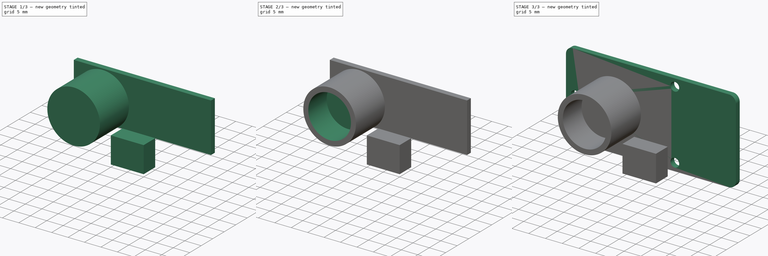
[diagram: build sequence overview — one tinted view per stage of 3, left to right]
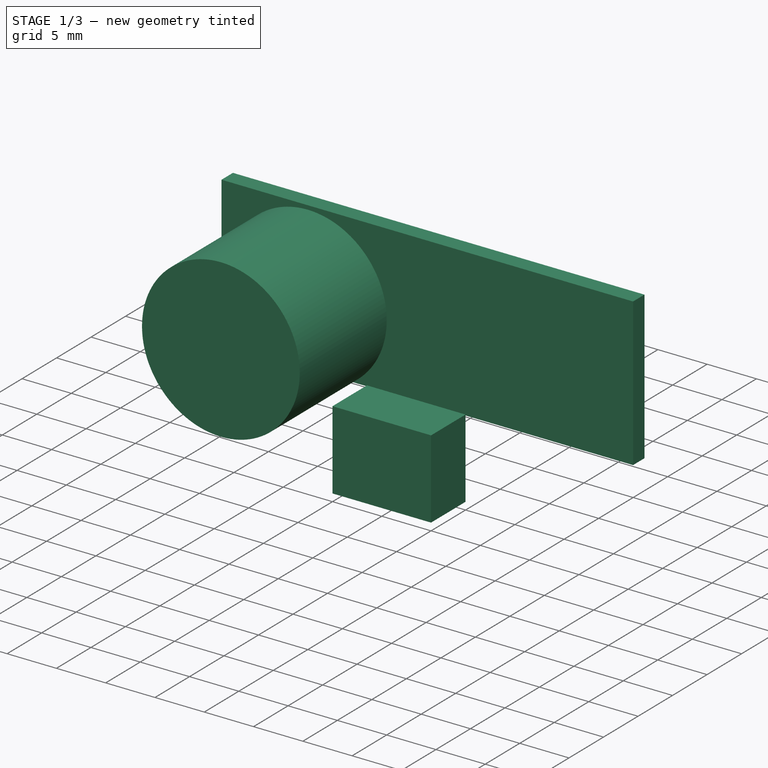
[diagram: stage 1 of 3 — iso view after this stage's code; geometry added in this stage tinted green]
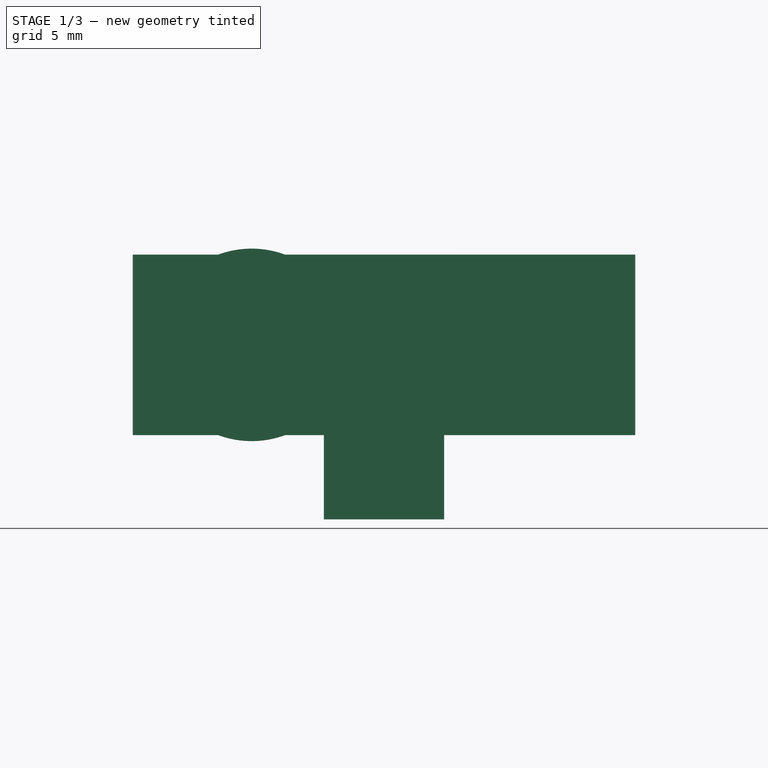
[diagram: stage 1 of 3 — front view after this stage's code; geometry added in this stage tinted green]
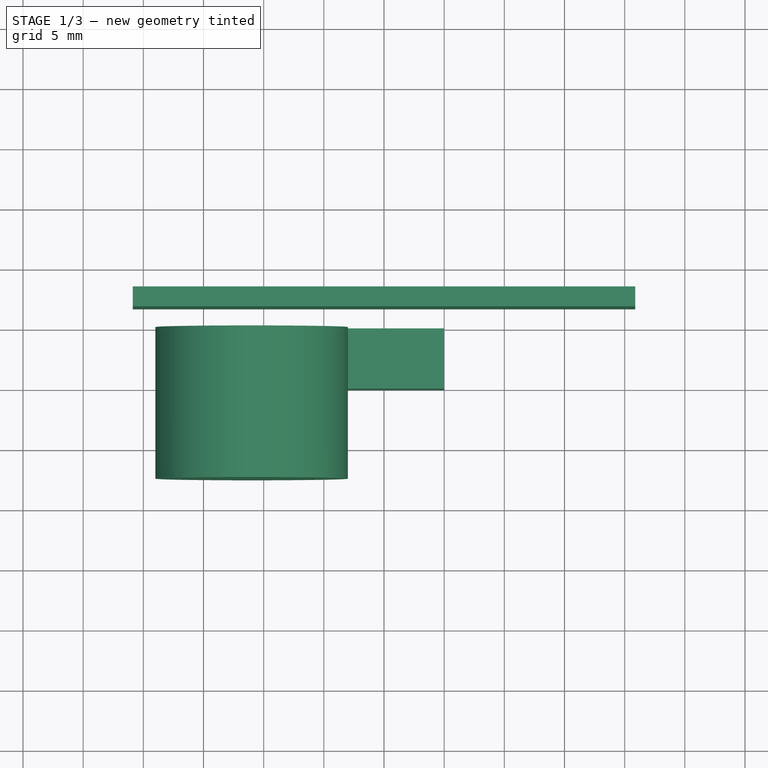
[diagram: stage 1 of 3 — top view after this stage's code; geometry added in this stage tinted green]
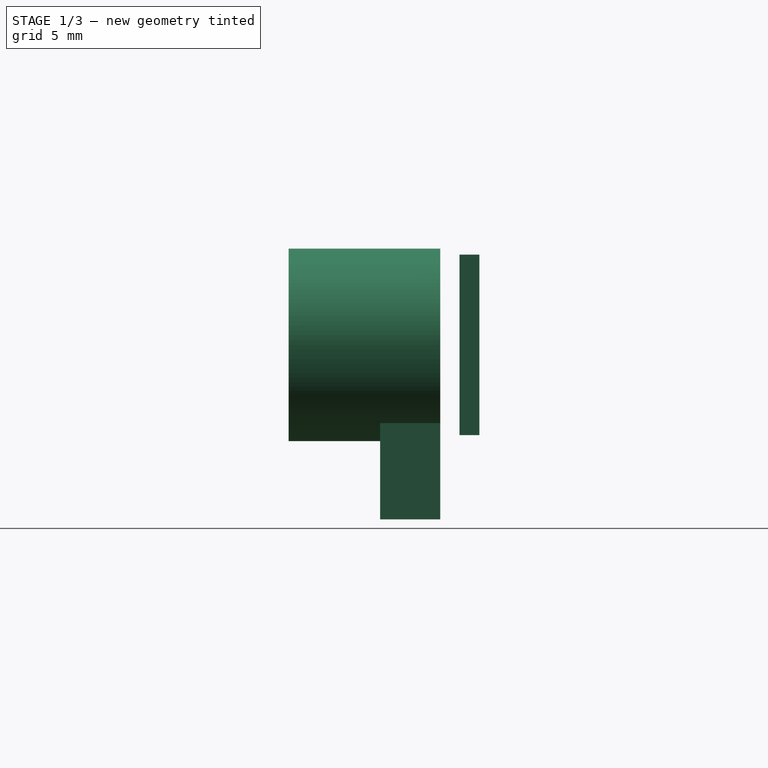
[diagram: stage 1 of 3 — right view after this stage's code; geometry added in this stage tinted green]
FCSTD DOCUMENT  (FreeCAD 0.19R24276 (Git))
Label: Grove_USDistSens
License: All rights reserved
LicenseURL: http://en.wikipedia.org/wiki/All_rights_reserved
objects: Sketcher::SketchObject×6, PartDesign::Body×5, PartDesign::Pad×4, PartDesign::Pocket×2, PartDesign::Fillet×1, PartDesign::FeatureBase×1, PartDesign::ShapeBinder×1, App::Part×1
note: 27 computed .brp shape members not serialized (recipe doc carries the construction recipe); baked Part::Feature solids carry a one-line shape summary decoded from their .brp

FEATURE [PartDesign::Body] Body  label="MainPlate"
  Group = -> [Sketch,Pad,Fillet,Sketch001,Pocket]
  Origin = -> Origin001
  Tip = -> Pocket
FEATURE [Sketcher::SketchObject] Sketch002
  FullyConstrained = true
  MapMode = 5
  Placement = pos=(0,0,0) rot=(1,0,0;1.5708rad)
  Support = -> [XZ_Plane002]
  sketch-geometry (1):
    g0: Circle CenterX=-11 CenterY=0 CenterZ=0 NormalX=0 NormalY=0 NormalZ=1 AngleXU=0 Radius=8
  constraints (3):
    c: PointOnObject(g0,g-1)
    c: DistanceX(g0,g-1) = 11
    c: Diameter(g0) = 16
FEATURE [PartDesign::Pad] Pad001
  Direction = (1,1,1)
  Length = 12.6
  Length2 = 100
  Placement = pos=(0,0,0) rot=(1,0,0;1.5708rad)
  Profile = -> Sketch002
  Type = 0
FEATURE [PartDesign::Body] Body002  label="USProbeR"
  Group = -> [Clone]
  Origin = -> Origin003
  Placement = pos=(22,0,0) rot=(0,0,1;0rad)
  Tip = -> Clone
FEATURE [Sketcher::SketchObject] Sketch004
  FullyConstrained = true
  MapMode = 5
  Placement = pos=(0,0,0) rot=(1,0,0;1.5708rad)
  Support = -> [XZ_Plane004]
  sketch-geometry (5):
    g0: LineSegment StartX=-5 StartY=-6.5 StartZ=0 EndX=5 EndY=-6.5 EndZ=0
    g1: LineSegment StartX=5 StartY=-6.5 StartZ=0 EndX=5 EndY=-14.5 EndZ=0
    g2: LineSegment StartX=5 StartY=-14.5 StartZ=0 EndX=-5 EndY=-14.5 EndZ=0
    g3: LineSegment StartX=-5 StartY=-14.5 StartZ=0 EndX=-5 EndY=-6.5 EndZ=0
    g4: LineSegment StartX=0 StartY=0 StartZ=0 EndX=0 EndY=-6.5 EndZ=0
  constraints (14):
    c: Coincident(g0,g1)
    c: Coincident(g1,g2)
    c: Coincident(g2,g3)
    c: Coincident(g3,g0)
    c: Horizontal(g0)
    c: Horizontal(g2)
    c: Vertical(g1)
    c: Vertical(g3)
    c: Coincident(g4,g-1)
    c: Vertical(g4)
    c: Symmetric(g0,g0,g4)
    c: Distance(g4) = 6.5
    c: Distance(g1) = 8
    c: Distance(g2) = 10
FEATURE [PartDesign::Pad] Pad002
  Direction = (1,1,1)
  Length = 5
  Length2 = 100
  Placement = pos=(0,0,0) rot=(1,0,0;1.5708rad)
  Profile = -> Sketch004
  Type = 0
FEATURE [PartDesign::Body] Body003  label="GroveConnector"
  Group = -> [Sketch004,Pad002]
  Origin = -> Origin004
  Tip = -> Pad002
FEATURE [PartDesign::ShapeBinder] CopyPocket
  Placement = pos=(0,0,0) rot=(1,0,0;1.5708rad)
  TraceSupport = false
FEATURE [Sketcher::SketchObject] Sketch005
  FullyConstrained = true
  MapMode = 5
  Placement = pos=(0,1.6,-2.1e-15) rot=(-1,0,0;1.5708rad)
  Support = -> [CopyPocket]
  sketch-geometry (6):
    g0: LineSegment StartX=0 StartY=0 StartZ=0 EndX=0 EndY=7.5 EndZ=0
    g1: LineSegment StartX=0 StartY=0 StartZ=0 EndX=20.875 EndY=0 EndZ=0
    g2: LineSegment StartX=-20.875 StartY=7.5 StartZ=0 EndX=20.875 EndY=7.5 EndZ=0
    g3: LineSegment StartX=20.875 StartY=7.5 StartZ=0 EndX=20.875 EndY=-7.5 EndZ=0
    g4: LineSegment StartX=20.875 StartY=-7.5 StartZ=0 EndX=-20.875 EndY=-7.5 EndZ=0
    g5: LineSegment StartX=-20.875 StartY=-7.5 StartZ=0 EndX=-20.875 EndY=7.5 EndZ=0
  constraints (16):
    c: Coincident(g0,g-1)
    c: Vertical(g0)
    c: Coincident(g1,g-1)
    c: Horizontal(g1)
    c: Coincident(g2,g3)
    c: Coincident(g3,g4)
    c: Coincident(g4,g5)
    c: Coincident(g5,g2)
    c: Horizontal(g2)
    c: Horizontal(g4)
    c: Vertical(g3)
    c: Vertical(g5)
    c: Symmetric(g2,g2,g0)
    c: Symmetric(g2,g3,g1)
    c: Distance(g3) = 15
    c: Distance(g2) = 41.75
FEATURE [PartDesign::Pad] Pad003
  Direction = (1,1,1)
  Length = 1.65
  Length2 = 100
  Placement = pos=(0,0,0) rot=(1,0,0;1.5708rad)
  Profile = -> Sketch005
  Type = 0
FEATURE [PartDesign::Body] Body004  label="Chips"
  Group = -> [CopyPocket,Sketch005,Pad003]
  Origin = -> Origin005
  Tip = -> Pad003
FEATURE [App::Part] Part  label="Grove_USRanger"
  Group = -> [Body,Body001,Body002,Body003,Body004]
  Origin = -> Origin
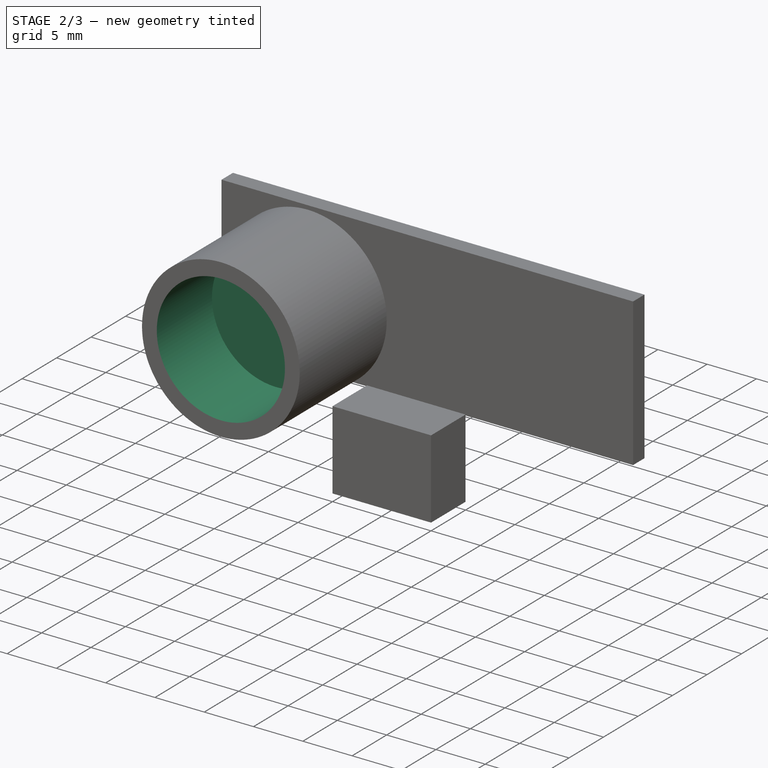
[diagram: stage 2 of 3 — iso view after this stage's code; geometry added in this stage tinted green]
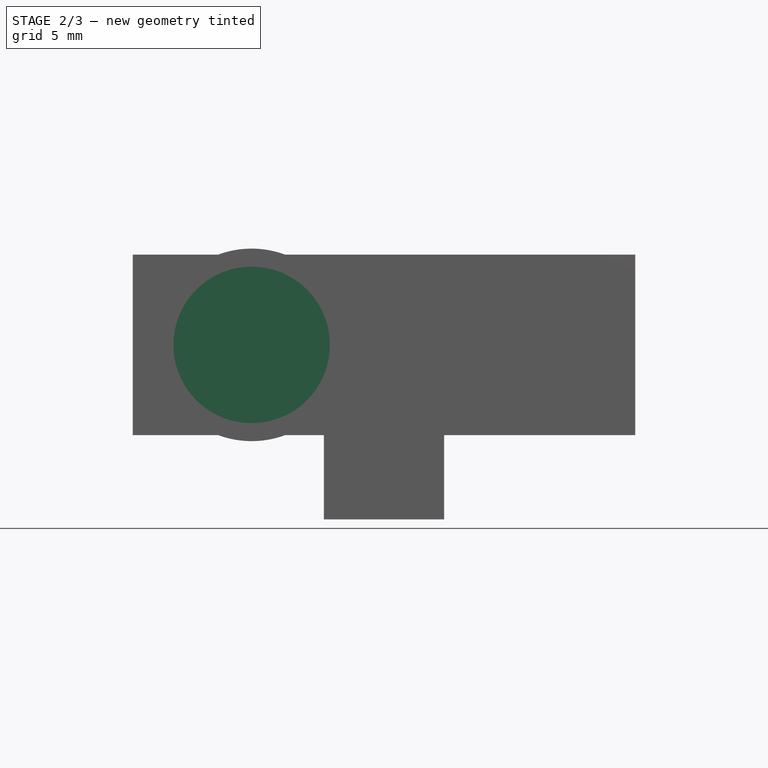
[diagram: stage 2 of 3 — front view after this stage's code; geometry added in this stage tinted green]
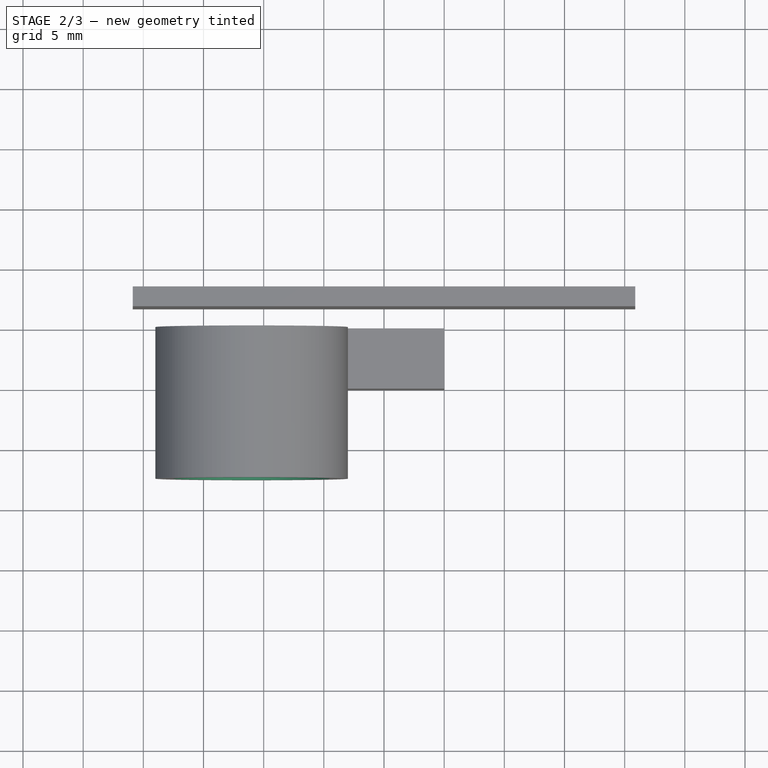
[diagram: stage 2 of 3 — top view after this stage's code; geometry added in this stage tinted green]
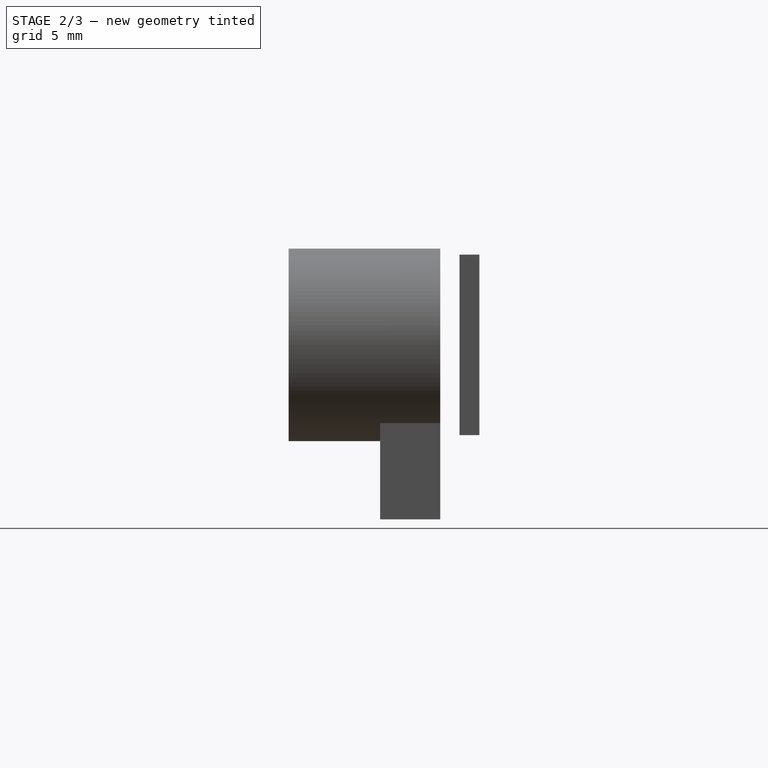
[diagram: stage 2 of 3 — right view after this stage's code; geometry added in this stage tinted green]
FEATURE [Sketcher::SketchObject] Sketch003
  FullyConstrained = true
  MapMode = 5
  Placement = pos=(0,-12.6,8.4e-15) rot=(1,0,0;1.5708rad)
  Support = -> [Pad001]
  sketch-geometry (1):
    g0: Circle CenterX=-11 CenterY=0 CenterZ=0 NormalX=0 NormalY=0 NormalZ=1 AngleXU=0 Radius=6.5
  constraints (3):
    c: PointOnObject(g0,g-1)
    c: DistanceX(g0,g-1) = 11
    c: Diameter(g0) = 13
FEATURE [PartDesign::Pocket] Pocket001
  BaseFeature = -> Pad001
  Length = 8
  Length2 = 100
  Placement = pos=(0,0,0) rot=(1,0,0;1.5708rad)
  Profile = -> Sketch003
  Type = 0
FEATURE [PartDesign::Body] Body001  label="USProbeL"
  Group = -> [Sketch002,Pad001,Sketch003,Pocket001]
  Origin = -> Origin002
  Tip = -> Pocket001
FEATURE [PartDesign::FeatureBase] Clone
  BaseFeature = -> Body001
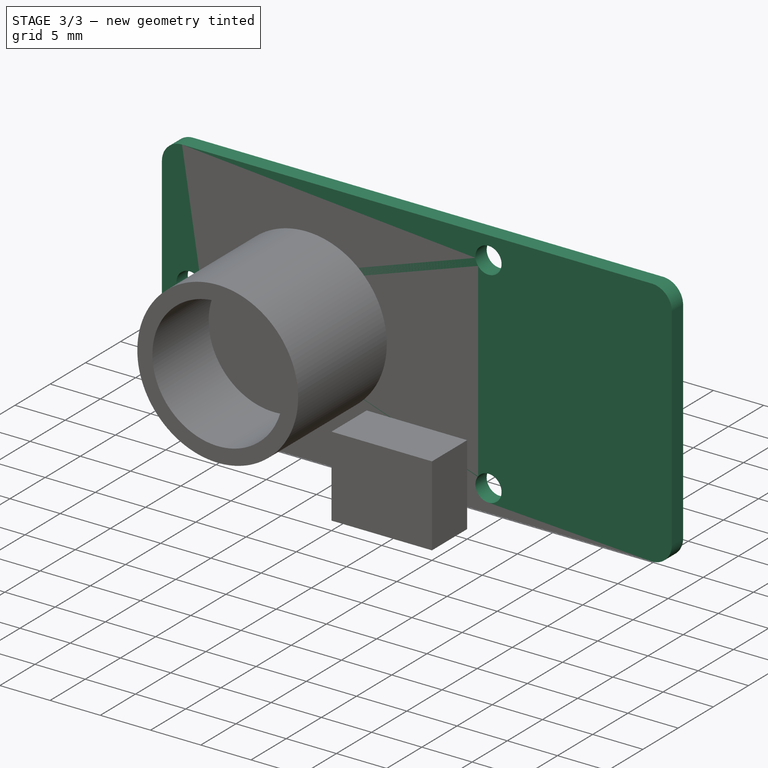
[diagram: stage 3 of 3 — iso view after this stage's code; geometry added in this stage tinted green]
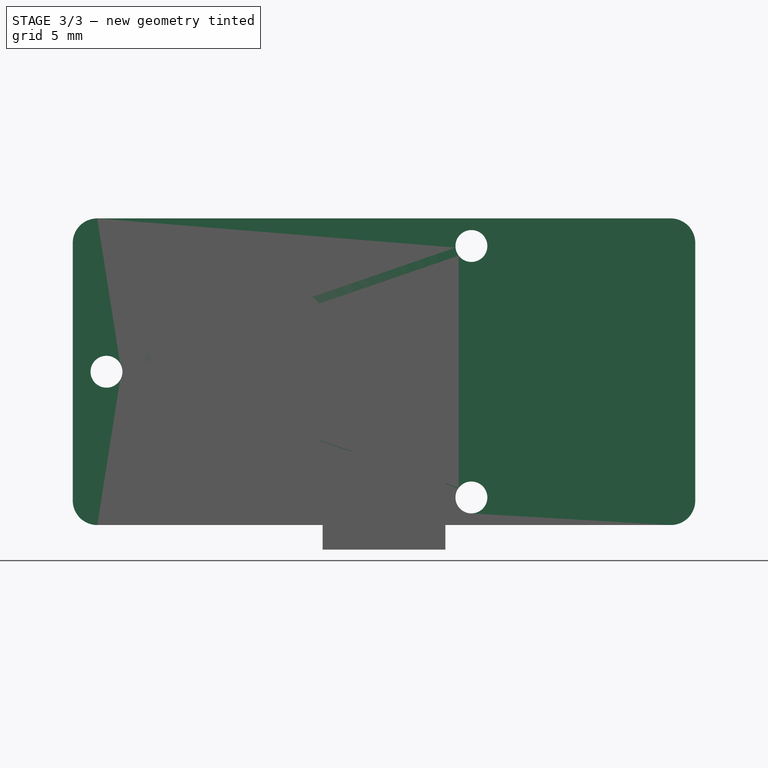
[diagram: stage 3 of 3 — front view after this stage's code; geometry added in this stage tinted green]
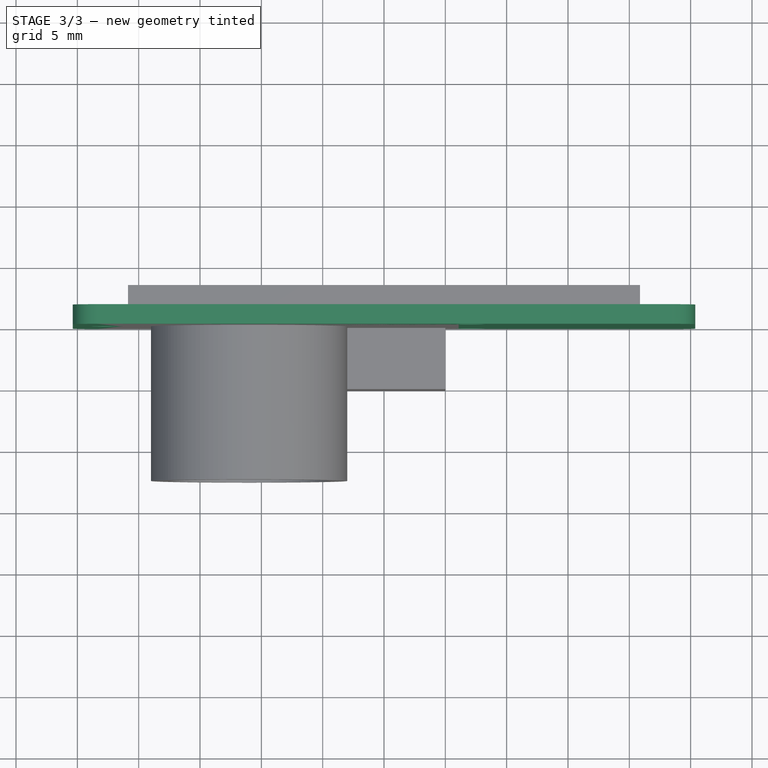
[diagram: stage 3 of 3 — top view after this stage's code; geometry added in this stage tinted green]
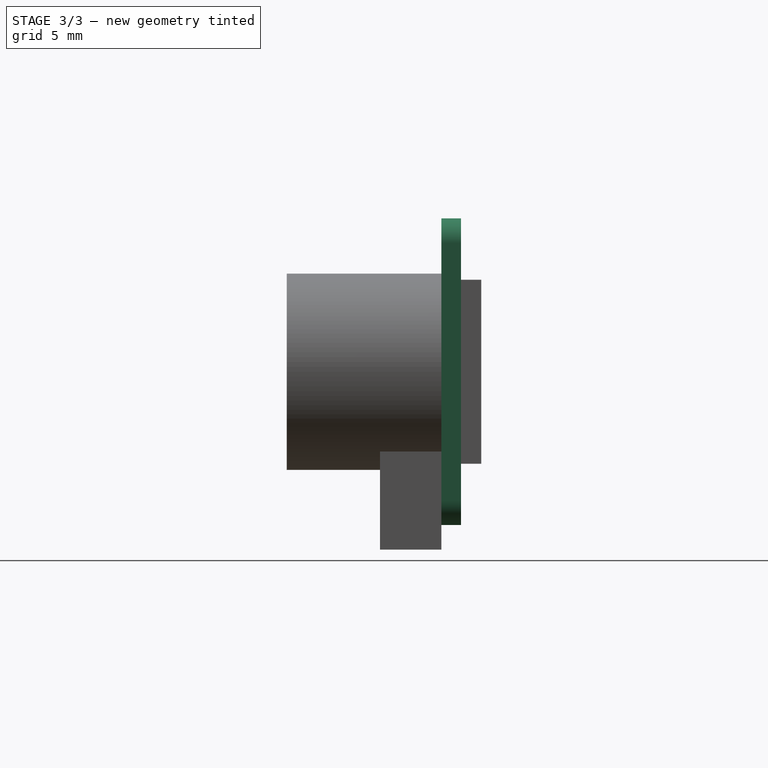
[diagram: stage 3 of 3 — right view after this stage's code; geometry added in this stage tinted green]
FEATURE [Sketcher::SketchObject] Sketch
  FullyConstrained = true
  MapMode = 5
  Placement = pos=(0,0,0) rot=(1,0,0;1.5708rad)
  Support = -> [XZ_Plane001]
  sketch-geometry (6):
    g0: LineSegment StartX=0 StartY=0 StartZ=0 EndX=0 EndY=12.5 EndZ=0
    g1: LineSegment StartX=0 StartY=0 StartZ=0 EndX=25.375 EndY=0 EndZ=0
    g2: LineSegment StartX=-25.375 StartY=12.5 StartZ=0 EndX=25.375 EndY=12.5 EndZ=0
    g3: LineSegment StartX=25.375 StartY=12.5 StartZ=0 EndX=25.375 EndY=-12.5 EndZ=0
    g4: LineSegment StartX=25.375 StartY=-12.5 StartZ=0 EndX=-25.375 EndY=-12.5 EndZ=0
    g5: LineSegment StartX=-25.375 StartY=-12.5 StartZ=0 EndX=-25.375 EndY=12.5 EndZ=0
  constraints (16):
    c: Coincident(g0,g-1)
    c: PointOnObject(g0,g-2)
    c: Coincident(g1,g-1)
    c: Horizontal(g1)
    c: Coincident(g2,g3)
    c: Coincident(g3,g4)
    c: Coincident(g4,g5)
    c: Coincident(g5,g2)
    c: Horizontal(g2)
    c: Horizontal(g4)
    c: Vertical(g3)
    c: Vertical(g5)
    c: Symmetric(g2,g2,g0)
    c: Symmetric(g2,g3,g1)
    c: Distance(g2) = 50.75
    c: Distance(g3) = 25
FEATURE [PartDesign::Pad] Pad
  Direction = (1,1,1)
  Length = 1.6
  Length2 = 100
  Placement = pos=(0,0,0) rot=(1,0,0;1.5708rad)
  Profile = -> Sketch
  Reversed = true
  Type = 0
FEATURE [PartDesign::Fillet] Fillet
  Base = -> Pad [Edge2,Edge1,Edge8,Edge5]
  BaseFeature = -> Pad
  Placement = pos=(0,0,0) rot=(1,0,0;1.5708rad)
  Radius = 2
  SupportTransform = false
FEATURE [Sketcher::SketchObject] Sketch001
  FullyConstrained = true
  MapMode = 5
  Placement = pos=(0,0,0) rot=(1,0,0;1.5708rad)
  Support = -> [XZ_Plane001]
  sketch-geometry (5):
    g0: Circle CenterX=-22.625 CenterY=0 CenterZ=0 NormalX=0 NormalY=0 NormalZ=1 AngleXU=0 Radius=1.3
    g1: Circle CenterX=7.125 CenterY=10.25 CenterZ=0 NormalX=0 NormalY=0 NormalZ=1 AngleXU=0 Radius=1.3
    g2: Circle CenterX=7.125 CenterY=-10.25 CenterZ=0 NormalX=0 NormalY=0 NormalZ=1 AngleXU=0 Radius=1.3
    g3: LineSegment StartX=7.125 StartY=10.25 StartZ=0 EndX=7.125 EndY=-10.25 EndZ=0
    g4: LineSegment StartX=0 StartY=0 StartZ=0 EndX=7.125 EndY=0 EndZ=0
  constraints (13):
    c: PointOnObject(g0,g-1)
    c: Coincident(g3,g1)
    c: Coincident(g3,g2)
    c: Vertical(g3)
    c: Equal(g0,g1)
    c: Equal(g2,g1)
    c: Diameter(g0) = 2.6
    c: Coincident(g4,g-1)
    c: PointOnObject(g4,g-1)
    c: Symmetric(g1,g2,g4)
    c: Distance(g3) = 20.5
    c: Distance(g4) = 7.125
    c: DistanceX(g0,g-1) = 22.625
FEATURE [PartDesign::Pocket] Pocket
  BaseFeature = -> Fillet
  Length = 5
  Length2 = 100
  Placement = pos=(0,0,0) rot=(1,0,0;1.5708rad)
  Profile = -> Sketch001
  Type = 1
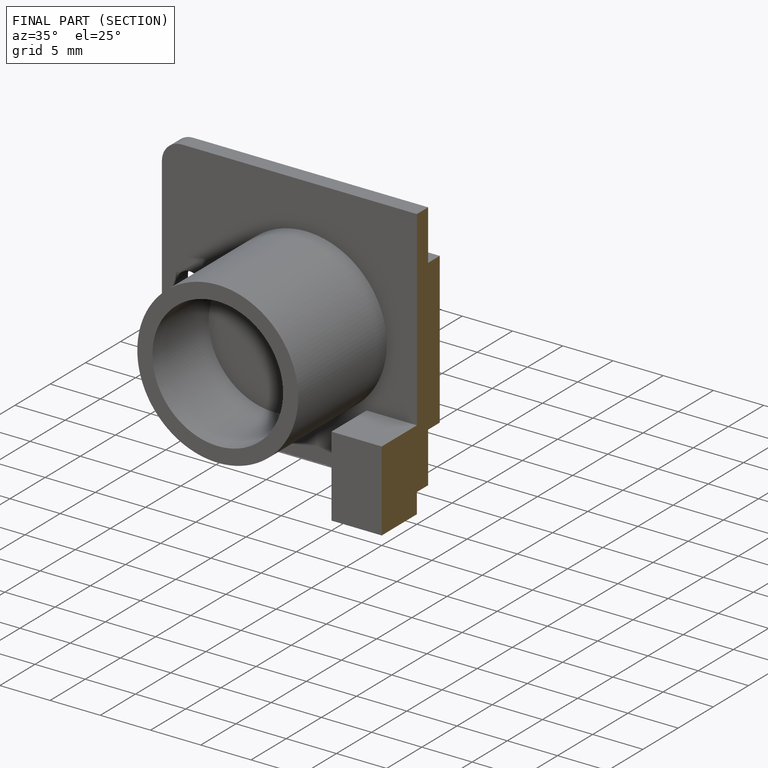
[diagram: finished part — half-section view (interior)]
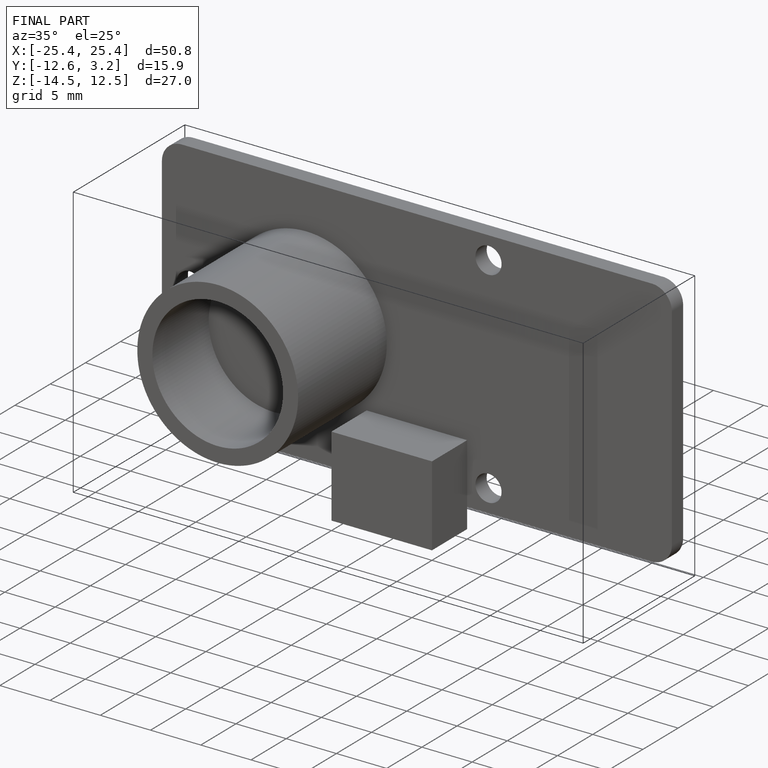
[diagram: finished part — iso view with bounding-box wireframe]
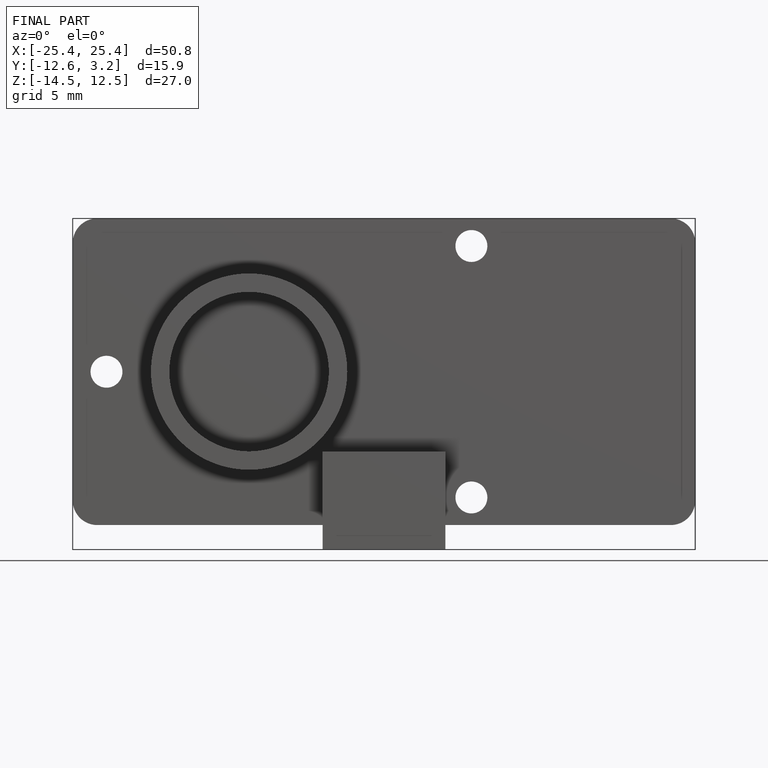
[diagram: finished part — front view with bounding-box wireframe]
